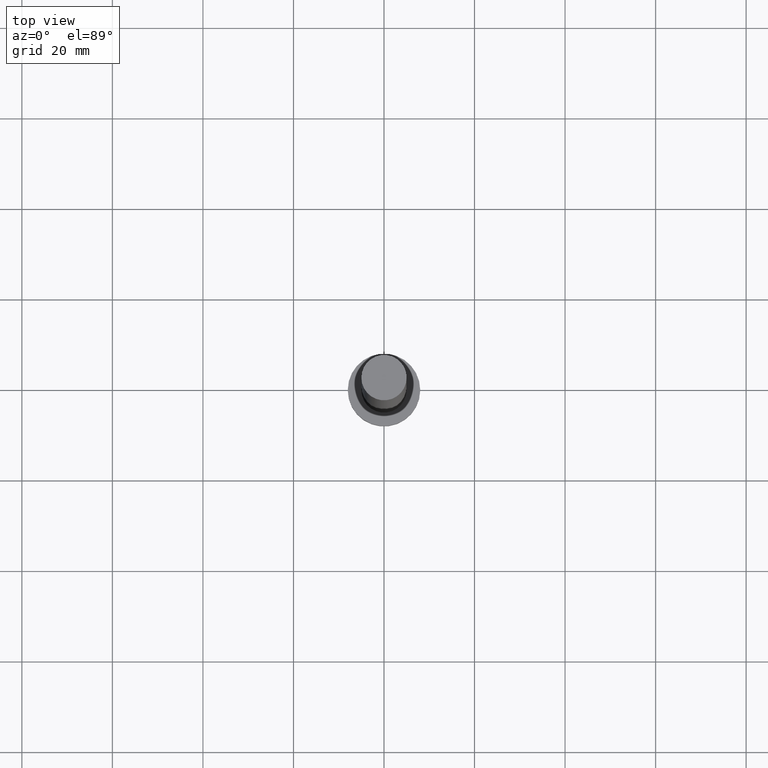
[diagram: clean part render]
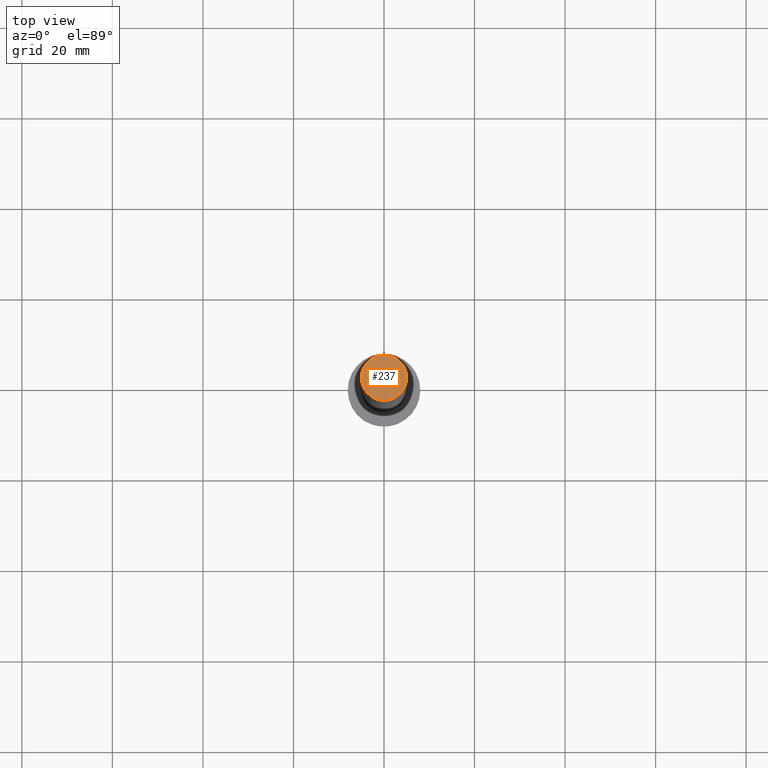
[diagram: same view with one face highlighted and labeled with its STEP entity id]
A machine part, top view. The second image highlights one B-rep face of the part: STEP entity #237.
In plain terms, the highlighted planar face has unit normal (0, 0, 1).
Its self-contained STEP definition (entity closure, byte-faithful):
#8 = DIRECTION ( 'NONE',  ( 1.000000000000000000, 0.000000000000000000, -0.000000000000000000 ) ) ;
#9 = DIRECTION ( 'NONE',  ( 1.000000000000000000, 0.000000000000000000, 0.000000000000000000 ) ) ;
#13 = EDGE_CURVE ( 'NONE', #59, #198, #152, .T. ) ;
#32 = CARTESIAN_POINT ( 'NONE',  ( 0.000000000000000000, 0.000000000000000000, 160.0000000000000000 ) ) ;
#35 = ORIENTED_EDGE ( 'NONE', *, *, #58, .T. ) ;
#43 = AXIS2_PLACEMENT_3D ( 'NONE', #32, #249, #200 ) ;
#58 = EDGE_CURVE ( 'NONE', #198, #59, #122, .T. ) ;
#59 = VERTEX_POINT ( 'NONE', #77 ) ;
#73 = DIRECTION ( 'NONE',  ( 0.000000000000000000, 0.000000000000000000, 1.000000000000000000 ) ) ;
#77 = CARTESIAN_POINT ( 'NONE',  ( -5.000000000000000000, 0.000000000000000000, 160.0000000000000000 ) ) ;
#93 = EDGE_LOOP ( 'NONE', ( #146, #35 ) ) ;
#102 = CARTESIAN_POINT ( 'NONE',  ( 0.000000000000000000, 0.000000000000000000, 160.0000000000000000 ) ) ;
#119 = DIRECTION ( 'NONE',  ( 0.000000000000000000, 0.000000000000000000, 1.000000000000000000 ) ) ;
#122 = CIRCLE ( 'NONE', #43, 5.000000000000000000 ) ;
#134 = AXIS2_PLACEMENT_3D ( 'NONE', #102, #73, #8 ) ;
#146 = ORIENTED_EDGE ( 'NONE', *, *, #13, .T. ) ;
#149 = PLANE ( 'NONE',  #134 ) ;
#152 = CIRCLE ( 'NONE', #190, 5.000000000000000000 ) ;
#171 = FACE_OUTER_BOUND ( 'NONE', #93, .T. ) ;
#183 = CARTESIAN_POINT ( 'NONE',  ( 5.000000000000000000, 6.123233995736766282E-16, 160.0000000000000000 ) ) ;
#190 = AXIS2_PLACEMENT_3D ( 'NONE', #229, #119, #9 ) ;
#198 = VERTEX_POINT ( 'NONE', #183 ) ;
#200 = DIRECTION ( 'NONE',  ( 1.000000000000000000, 0.000000000000000000, 0.000000000000000000 ) ) ;
#229 = CARTESIAN_POINT ( 'NONE',  ( 0.000000000000000000, 0.000000000000000000, 160.0000000000000000 ) ) ;
#237 = ADVANCED_FACE ( 'NONE', ( #171 ), #149, .T. ) ;
#249 = DIRECTION ( 'NONE',  ( 0.000000000000000000, 0.000000000000000000, 1.000000000000000000 ) ) ;